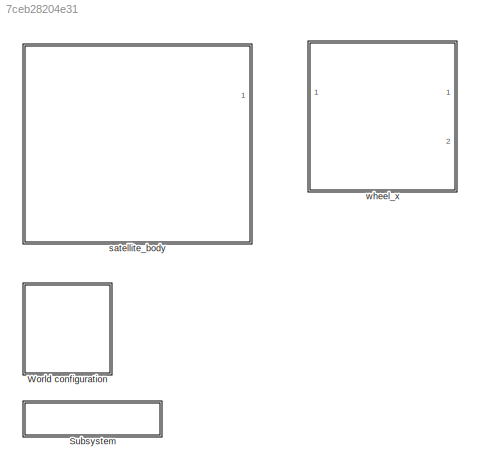
MODEL slx_7ceb28204e31
KIND library
CONFIG AbsTol = auto
CONFIG EnableMultiTasking = off
CONFIG FixedStep = auto
CONFIG MaxStep = auto
CONFIG MinStep = auto
CONFIG RelTol = 1e-3
CONFIG SampleTimeConstraint = Unconstrained
CONFIG Solver = VariableStepAuto
CONFIG SolverName = VariableStepAuto
CONFIG StartTime = 0.0
CONFIG StopTime = 10.0
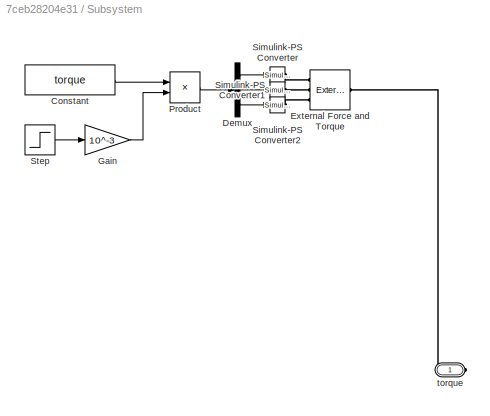
BLOCK [SubSystem] Subsystem
  Ports = [0, 0, 0, 0, 0, 0, 1]
  RequestExecContextInheritance = off
BLOCK [Constant] Subsystem/Constant
  Value = torque
BLOCK [Demux] Subsystem/Demux
  DisplayOption = bar
  Outputs = 3
  Ports = [1, 3]
BLOCK [Reference] Subsystem/External Force and Torque  REF=sm_lib/Forces and
Torques/External Force
and Torque
  Ports = [0, 0, 0, 0, 0, 3, 1]
  SourceBlock = sm_lib/Forces and\nTorques/External Force\nand Torque
  SourceProductBaseCode = MS
  SourceProductName = Simscape Multibody
  SourceType = External Force\nand Torque
BLOCK [Gain] Subsystem/Gain
  Gain = 10^-3
  OutDataTypeStr = Inherit: Inherit via internal rule
  ParamDataTypeStr = Inherit: Inherit via internal rule
  SaturateOnIntegerOverflow = off
BLOCK [Product] Subsystem/Product
  InputSameDT = off
  OutDataTypeStr = Inherit: Inherit via internal rule
  Ports = [2, 1]
  RndMeth = Floor
  SaturateOnIntegerOverflow = off
BLOCK [Reference] Subsystem/Simulink-PS Converter  REF=nesl_utility/Simulink-PS
Converter
  Ports = [1, 0, 0, 0, 0, 0, 1]
  SourceBlock = nesl_utility/Simulink-PS\nConverter
  SourceProductBaseCode = SS
  SourceProductName = Simscape
  SourceType = Simulink-PS\nConverter
BLOCK [Reference] Subsystem/Simulink-PS Converter1  REF=nesl_utility/Simulink-PS
Converter
  Ports = [1, 0, 0, 0, 0, 0, 1]
  SourceBlock = nesl_utility/Simulink-PS\nConverter
  SourceProductBaseCode = SS
  SourceProductName = Simscape
  SourceType = Simulink-PS\nConverter
BLOCK [Reference] Subsystem/Simulink-PS Converter2  REF=nesl_utility/Simulink-PS
Converter
  Ports = [1, 0, 0, 0, 0, 0, 1]
  SourceBlock = nesl_utility/Simulink-PS\nConverter
  SourceProductBaseCode = SS
  SourceProductName = Simscape
  SourceType = Simulink-PS\nConverter
BLOCK [Step] Subsystem/Step
  After = 0
  Before = 1
  SampleTime = 0.1
BLOCK [PMIOPort] Subsystem/torque
  Side = Right
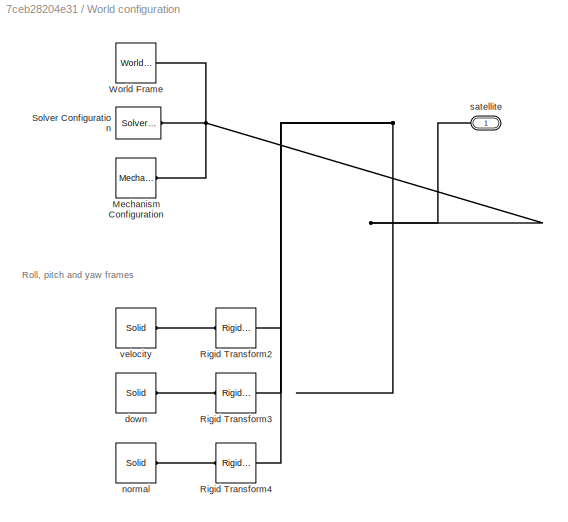
BLOCK [SubSystem] World configuration
  Ports = [0, 0, 0, 0, 0, 0, 1]
  RequestExecContextInheritance = off
BLOCK [Reference] World configuration/Mechanism Configuration  REF=sm_lib/Utilities/Mechanism
Configuration
  Ports = [0, 0, 0, 0, 0, 0, 1]
  SourceBlock = sm_lib/Utilities/Mechanism\nConfiguration
  SourceProductBaseCode = MS
  SourceProductName = Simscape Multibody
  SourceType = Mechanism\nConfiguration
BLOCK [Reference] World configuration/Rigid Transform2  REF=sm_lib/Frames and
Transforms/Rigid
Transform
  Ports = [0, 0, 0, 0, 0, 1, 1]
  SourceBlock = sm_lib/Frames and\nTransforms/Rigid\nTransform
  SourceProductBaseCode = MS
  SourceProductName = Simscape Multibody
  SourceType = Rigid\nTransform
BLOCK [Reference] World configuration/Rigid Transform3  REF=sm_lib/Frames and
Transforms/Rigid
Transform
  Ports = [0, 0, 0, 0, 0, 1, 1]
  SourceBlock = sm_lib/Frames and\nTransforms/Rigid\nTransform
  SourceProductBaseCode = MS
  SourceProductName = Simscape Multibody
  SourceType = Rigid\nTransform
BLOCK [Reference] World configuration/Rigid Transform4  REF=sm_lib/Frames and
Transforms/Rigid
Transform
  Ports = [0, 0, 0, 0, 0, 1, 1]
  SourceBlock = sm_lib/Frames and\nTransforms/Rigid\nTransform
  SourceProductBaseCode = MS
  SourceProductName = Simscape Multibody
  SourceType = Rigid\nTransform
BLOCK [Reference] World configuration/Solver Configuration  REF=nesl_utility/Solver
Configuration
  Ports = [0, 0, 0, 0, 0, 0, 1]
  SourceBlock = nesl_utility/Solver\nConfiguration
  SourceProductBaseCode = SS
  SourceProductName = Simscape
  SourceType = Solver\nConfiguration
BLOCK [Reference] World configuration/World Frame  REF=sm_lib/Frames and
Transforms/World Frame
  Ports = [0, 0, 0, 0, 0, 0, 1]
  SourceBlock = sm_lib/Frames and\nTransforms/World Frame
  SourceProductBaseCode = MS
  SourceProductName = Simscape Multibody
  SourceType = World Frame
BLOCK [Reference] World configuration/down  REF=sm_lib/Body Elements/Solid
  Ports = [0, 0, 0, 0, 0, 0, 1]
  SourceBlock = sm_lib/Body Elements/Solid
  SourceProductBaseCode = MS
  SourceProductName = Simscape Multibody
  SourceType = Solid
BLOCK [Reference] World configuration/normal  REF=sm_lib/Body Elements/Solid
  Ports = [0, 0, 0, 0, 0, 0, 1]
  SourceBlock = sm_lib/Body Elements/Solid
  SourceProductBaseCode = MS
  SourceProductName = Simscape Multibody
  SourceType = Solid
BLOCK [PMIOPort] World configuration/satellite
  Side = Right
BLOCK [Reference] World configuration/velocity  REF=sm_lib/Body Elements/Solid
  Ports = [0, 0, 0, 0, 0, 0, 1]
  SourceBlock = sm_lib/Body Elements/Solid
  SourceProductBaseCode = MS
  SourceProductName = Simscape Multibody
  SourceType = Solid
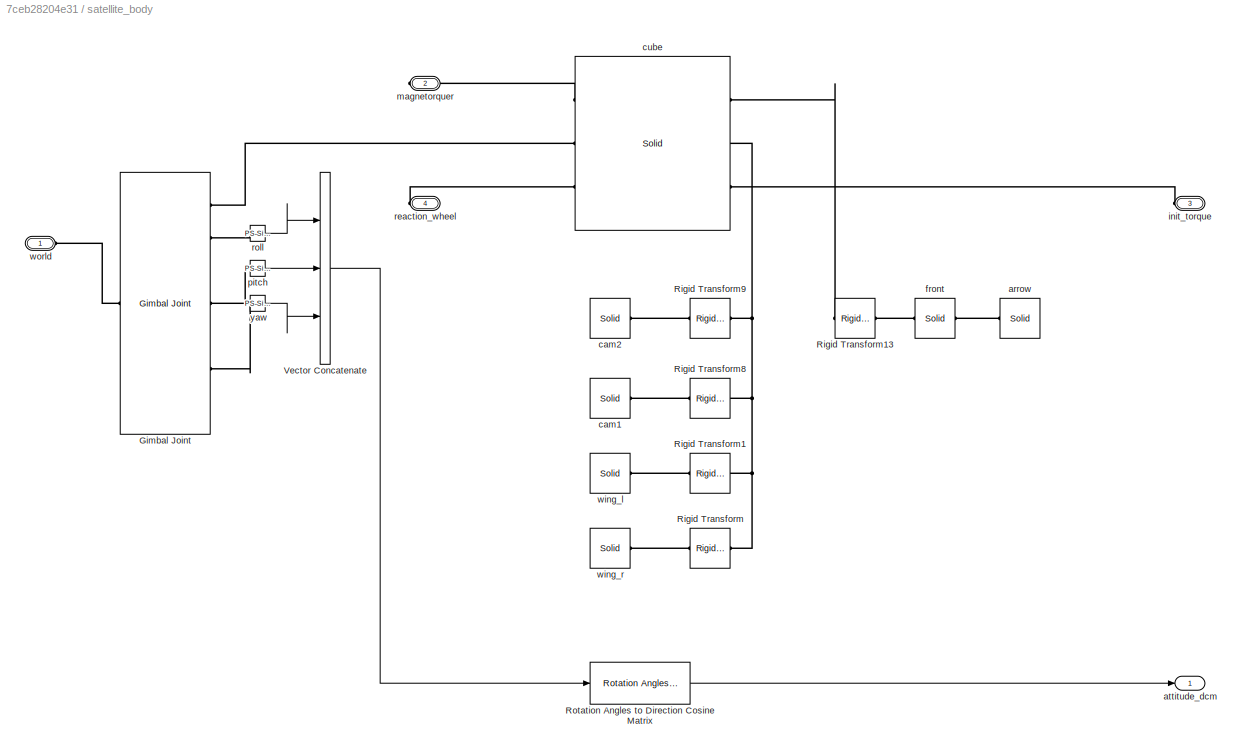
BLOCK [SubSystem] satellite_body
  Ports = [0, 1, 0, 0, 0, 2, 2]
  RequestExecContextInheritance = off
BLOCK [Reference] satellite_body/Gimbal Joint  REF=sm_lib/Joints/Gimbal Joint
  Ports = [0, 0, 0, 0, 0, 1, 7]
  SourceBlock = sm_lib/Joints/Gimbal Joint
  SourceProductBaseCode = MS
  SourceProductName = Simscape Multibody
  SourceType = Gimbal Joint
BLOCK [Reference] satellite_body/Rigid Transform  REF=sm_lib/Frames and
Transforms/Rigid
Transform
  Ports = [0, 0, 0, 0, 0, 1, 1]
  SourceBlock = sm_lib/Frames and\nTransforms/Rigid\nTransform
  SourceProductBaseCode = MS
  SourceProductName = Simscape Multibody
  SourceType = Rigid\nTransform
BLOCK [Reference] satellite_body/Rigid Transform1  REF=sm_lib/Frames and
Transforms/Rigid
Transform
  Ports = [0, 0, 0, 0, 0, 1, 1]
  SourceBlock = sm_lib/Frames and\nTransforms/Rigid\nTransform
  SourceProductBaseCode = MS
  SourceProductName = Simscape Multibody
  SourceType = Rigid\nTransform
BLOCK [Reference] satellite_body/Rigid Transform13  REF=sm_lib/Frames and
Transforms/Rigid
Transform
  Ports = [0, 0, 0, 0, 0, 1, 1]
  SourceBlock = sm_lib/Frames and\nTransforms/Rigid\nTransform
  SourceProductBaseCode = MS
  SourceProductName = Simscape Multibody
  SourceType = Rigid\nTransform
BLOCK [Reference] satellite_body/Rigid Transform8  REF=sm_lib/Frames and
Transforms/Rigid
Transform
  Ports = [0, 0, 0, 0, 0, 1, 1]
  SourceBlock = sm_lib/Frames and\nTransforms/Rigid\nTransform
  SourceProductBaseCode = MS
  SourceProductName = Simscape Multibody
  SourceType = Rigid\nTransform
BLOCK [Reference] satellite_body/Rigid Transform9  REF=sm_lib/Frames and
Transforms/Rigid
Transform
  Ports = [0, 0, 0, 0, 0, 1, 1]
  SourceBlock = sm_lib/Frames and\nTransforms/Rigid\nTransform
  SourceProductBaseCode = MS
  SourceProductName = Simscape Multibody
  SourceType = Rigid\nTransform
BLOCK [Reference] satellite_body/Rotation Angles to Direction Cosine Matrix  REF=sharedtransform/Rotation Angles to
Direction Cosine Matrix
  AttributesFormatString = Rotation Order: %<rotationOrder>
  Ports = [1, 1]
  SourceBlock = sharedtransform/Rotation Angles to\nDirection Cosine Matrix
  SourceProductBaseCode = AE
  SourceProductName = Aerospace Blockset
  SourceType = Ang2DCM
BLOCK [Concatenate] satellite_body/Vector Concatenate
  NumInputs = 3
  Ports = [3, 1]
BLOCK [Reference] satellite_body/arrow  REF=sm_lib/Body Elements/Solid
  Ports = [0, 0, 0, 0, 0, 0, 1]
  SourceBlock = sm_lib/Body Elements/Solid
  SourceProductBaseCode = MS
  SourceProductName = Simscape Multibody
  SourceType = Solid
BLOCK [Outport] satellite_body/attitude_dcm
  IconDisplay = Port number
BLOCK [Reference] satellite_body/cam1  REF=sm_lib/Body Elements/Solid
  Ports = [0, 0, 0, 0, 0, 0, 1]
  SourceBlock = sm_lib/Body Elements/Solid
  SourceProductBaseCode = MS
  SourceProductName = Simscape Multibody
  SourceType = Solid
BLOCK [Reference] satellite_body/cam2  REF=sm_lib/Body Elements/Solid
  Ports = [0, 0, 0, 0, 0, 0, 1]
  SourceBlock = sm_lib/Body Elements/Solid
  SourceProductBaseCode = MS
  SourceProductName = Simscape Multibody
  SourceType = Solid
BLOCK [Reference] satellite_body/cube  REF=sm_lib/Body Elements/Solid
  Ports = [0, 0, 0, 0, 0, 3, 3]
  SourceBlock = sm_lib/Body Elements/Solid
  SourceProductBaseCode = MS
  SourceProductName = Simscape Multibody
  SourceType = Solid
BLOCK [Reference] satellite_body/front  REF=sm_lib/Body Elements/Solid
  Ports = [0, 0, 0, 0, 0, 1, 1]
  SourceBlock = sm_lib/Body Elements/Solid
  SourceProductBaseCode = MS
  SourceProductName = Simscape Multibody
  SourceType = Solid
BLOCK [PMIOPort] satellite_body/init_torque
  Port = 3
  Side = Left
BLOCK [PMIOPort] satellite_body/magnetorquer
  Port = 2
  Side = Right
BLOCK [Reference] satellite_body/pitch  REF=nesl_utility/PS-Simulink
Converter
  Ports = [0, 1, 0, 0, 0, 1]
  SourceBlock = nesl_utility/PS-Simulink\nConverter
  SourceProductBaseCode = SS
  SourceProductName = Simscape
  SourceType = PS-Simulink\nConverter
BLOCK [PMIOPort] satellite_body/reaction_wheel
  Port = 4
  Side = Right
BLOCK [Reference] satellite_body/roll  REF=nesl_utility/PS-Simulink
Converter
  Ports = [0, 1, 0, 0, 0, 1]
  SourceBlock = nesl_utility/PS-Simulink\nConverter
  SourceProductBaseCode = SS
  SourceProductName = Simscape
  SourceType = PS-Simulink\nConverter
BLOCK [Reference] satellite_body/wing_l  REF=sm_lib/Body Elements/Solid
  Ports = [0, 0, 0, 0, 0, 0, 1]
  SourceBlock = sm_lib/Body Elements/Solid
  SourceProductBaseCode = MS
  SourceProductName = Simscape Multibody
  SourceType = Solid
BLOCK [Reference] satellite_body/wing_r  REF=sm_lib/Body Elements/Solid
  Ports = [0, 0, 0, 0, 0, 0, 1]
  SourceBlock = sm_lib/Body Elements/Solid
  SourceProductBaseCode = MS
  SourceProductName = Simscape Multibody
  SourceType = Solid
BLOCK [PMIOPort] satellite_body/world
  Side = Left
BLOCK [Reference] satellite_body/yaw  REF=nesl_utility/PS-Simulink
Converter
  Ports = [0, 1, 0, 0, 0, 1]
  SourceBlock = nesl_utility/PS-Simulink\nConverter
  SourceProductBaseCode = SS
  SourceProductName = Simscape
  SourceType = PS-Simulink\nConverter
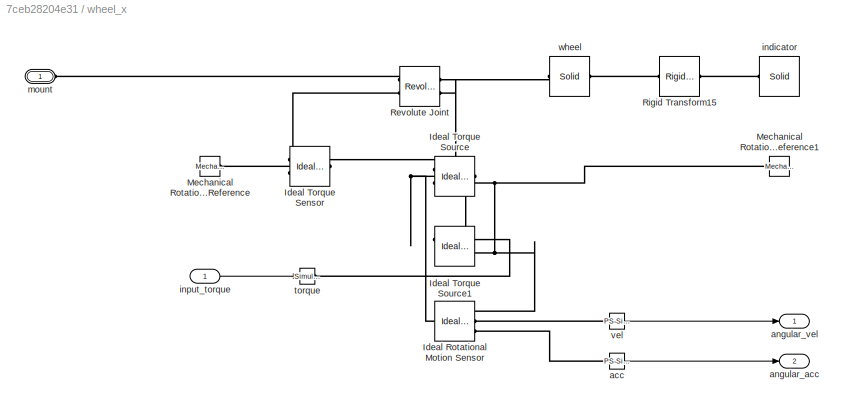
BLOCK [SubSystem] wheel_x
  Ports = [1, 2, 0, 0, 0, 1]
  RequestExecContextInheritance = off
BLOCK [Reference] wheel_x/Ideal Rotational Motion Sensor  REF=fl_lib/Mechanical/Mechanical Sensors/Ideal Rotational
Motion Sensor
  Ports = [0, 0, 0, 0, 0, 1, 3]
  SourceBlock = fl_lib/Mechanical/Mechanical Sensors/Ideal Rotational\nMotion Sensor
  SourceProductBaseCode = SS
  SourceProductName = Simscape
  SourceType = Ideal Rotational\nMotion Sensor
BLOCK [Reference] wheel_x/Ideal Torque Sensor  REF=fl_lib/Mechanical/Mechanical Sensors/Ideal Torque Sensor
  Ports = [0, 0, 0, 0, 0, 1, 2]
  SourceBlock = fl_lib/Mechanical/Mechanical Sensors/Ideal Torque Sensor
  SourceProductBaseCode = SS
  SourceProductName = Simscape
  SourceType = Ideal Torque Sensor
BLOCK [Reference] wheel_x/Ideal Torque Source  REF=fl_lib/Mechanical/Mechanical Sources/Ideal Torque Source
  Ports = [0, 0, 0, 0, 0, 1, 2]
  SourceBlock = fl_lib/Mechanical/Mechanical Sources/Ideal Torque Source
  SourceProductBaseCode = SS
  SourceProductName = Simscape
  SourceType = Ideal Torque Source
BLOCK [Reference] wheel_x/Ideal Torque Source1  REF=fl_lib/Mechanical/Mechanical Sources/Ideal Torque Source
  Ports = [0, 0, 0, 0, 0, 1, 2]
  SourceBlock = fl_lib/Mechanical/Mechanical Sources/Ideal Torque Source
  SourceProductBaseCode = SS
  SourceProductName = Simscape
  SourceType = Ideal Torque Source
BLOCK [Reference] wheel_x/Mechanical Rotational Reference  REF=fl_lib/Mechanical/Rotational Elements/Mechanical
Rotational Reference
  Ports = [0, 0, 0, 0, 0, 1]
  SourceBlock = fl_lib/Mechanical/Rotational Elements/Mechanical\nRotational Reference
  SourceProductBaseCode = SS
  SourceProductName = Simscape
  SourceType = Mechanical\nRotational Reference
BLOCK [Reference] wheel_x/Mechanical Rotational Reference1  REF=fl_lib/Mechanical/Rotational Elements/Mechanical
Rotational Reference
  Ports = [0, 0, 0, 0, 0, 1]
  SourceBlock = fl_lib/Mechanical/Rotational Elements/Mechanical\nRotational Reference
  SourceProductBaseCode = SS
  SourceProductName = Simscape
  SourceType = Mechanical\nRotational Reference
BLOCK [Reference] wheel_x/Revolute Joint  REF=sm_lib/Joints/Revolute Joint
  Ports = [0, 0, 0, 0, 0, 2, 2]
  SourceBlock = sm_lib/Joints/Revolute Joint
  SourceProductBaseCode = MS
  SourceProductName = Simscape Multibody
  SourceType = Revolute Joint
BLOCK [Reference] wheel_x/Rigid Transform15  REF=sm_lib/Frames and
Transforms/Rigid
Transform
  Ports = [0, 0, 0, 0, 0, 1, 1]
  SourceBlock = sm_lib/Frames and\nTransforms/Rigid\nTransform
  SourceProductBaseCode = MS
  SourceProductName = Simscape Multibody
  SourceType = Rigid\nTransform
BLOCK [Reference] wheel_x/acc  REF=nesl_utility/PS-Simulink
Converter
  Ports = [0, 1, 0, 0, 0, 1]
  SourceBlock = nesl_utility/PS-Simulink\nConverter
  SourceProductBaseCode = SS
  SourceProductName = Simscape
  SourceType = PS-Simulink\nConverter
BLOCK [Outport] wheel_x/angular_acc
  IconDisplay = Port number
  Port = 2
BLOCK [Outport] wheel_x/angular_vel
  IconDisplay = Port number
BLOCK [Reference] wheel_x/indicator  REF=sm_lib/Body Elements/Solid
  Ports = [0, 0, 0, 0, 0, 0, 1]
  SourceBlock = sm_lib/Body Elements/Solid
  SourceProductBaseCode = MS
  SourceProductName = Simscape Multibody
  SourceType = Solid
BLOCK [Inport] wheel_x/input_torque
  IconDisplay = Port number
BLOCK [PMIOPort] wheel_x/mount
  Side = Left
BLOCK [Reference] wheel_x/torque  REF=nesl_utility/Simulink-PS
Converter
  Ports = [1, 0, 0, 0, 0, 0, 1]
  SourceBlock = nesl_utility/Simulink-PS\nConverter
  SourceProductBaseCode = SS
  SourceProductName = Simscape
  SourceType = Simulink-PS\nConverter
BLOCK [Reference] wheel_x/vel  REF=nesl_utility/PS-Simulink
Converter
  Ports = [0, 1, 0, 0, 0, 1]
  SourceBlock = nesl_utility/PS-Simulink\nConverter
  SourceProductBaseCode = SS
  SourceProductName = Simscape
  SourceType = PS-Simulink\nConverter
BLOCK [Reference] wheel_x/wheel  REF=sm_lib/Body Elements/Solid
  Ports = [0, 0, 0, 0, 0, 1, 1]
  SourceBlock = sm_lib/Body Elements/Solid
  SourceProductBaseCode = MS
  SourceProductName = Simscape Multibody
  SourceType = Solid
ANNOTATION World configuration: Roll, pitch and yaw frames
LINE Subsystem/Constant:1 -> Subsystem/Product:1
LINE Subsystem/Demux:1 -> Subsystem/Simulink-PS Converter:1
LINE Subsystem/Demux:2 -> Subsystem/Simulink-PS Converter1:1
LINE Subsystem/Demux:3 -> Subsystem/Simulink-PS Converter2:1
LINE Subsystem/Gain:1 -> Subsystem/Product:2
LINE Subsystem/Product:1 -> Subsystem/Demux:1
LINE Subsystem/Step:1 -> Subsystem/Gain:1
LINE satellite_body/Rotation Angles to Direction Cosine Matrix:1 -> satellite_body/attitude_dcm:1
LINE satellite_body/Vector Concatenate:1 -> satellite_body/Rotation Angles to Direction Cosine Matrix:1
LINE satellite_body/pitch:1 -> satellite_body/Vector Concatenate:2
LINE satellite_body/roll:1 -> satellite_body/Vector Concatenate:1
LINE satellite_body/yaw:1 -> satellite_body/Vector Concatenate:3
LINE wheel_x/acc:1 -> wheel_x/angular_acc:1
LINE wheel_x/input_torque:1 -> wheel_x/torque:1
LINE wheel_x/vel:1 -> wheel_x/angular_vel:1
PLINE Subsystem/External Force and Torque:LConn1 -- Subsystem/Simulink-PS Converter:RConn1
PLINE Subsystem/External Force and Torque:LConn2 -- Subsystem/Simulink-PS Converter1:RConn1
PLINE Subsystem/External Force and Torque:LConn3 -- Subsystem/Simulink-PS Converter2:RConn1
PLINE Subsystem/External Force and Torque:RConn1 -- Subsystem/torque:RConn1
PNET net1: World configuration/Mechanism Configuration:RConn1 -- World configuration/Rigid Transform2:RConn1 -- World configuration/Rigid Transform3:RConn1 -- World configuration/Rigid Transform4:RConn1 -- World configuration/Solver Configuration:RConn1 -- World configuration/World Frame:RConn1 -- World configuration/satellite:RConn1
PLINE World configuration/Rigid Transform2:LConn1 -- World configuration/velocity:RConn1
PLINE World configuration/Rigid Transform3:LConn1 -- World configuration/down:RConn1
PLINE World configuration/Rigid Transform4:LConn1 -- World configuration/normal:RConn1
PLINE satellite_body/Gimbal Joint:LConn1 -- satellite_body/world:RConn1
PLINE satellite_body/Gimbal Joint:RConn1 -- satellite_body/cube:RConn2
PLINE satellite_body/Gimbal Joint:RConn2 -- satellite_body/roll:LConn1
PLINE satellite_body/Gimbal Joint:RConn4 -- satellite_body/pitch:LConn1
PLINE satellite_body/Gimbal Joint:RConn6 -- satellite_body/yaw:LConn1
PLINE satellite_body/Rigid Transform13:LConn1 -- satellite_body/cube:LConn1
PLINE satellite_body/Rigid Transform13:RConn1 -- satellite_body/front:RConn1
PNET net2: satellite_body/Rigid Transform1:LConn1 -- satellite_body/Rigid Transform8:LConn1 -- satellite_body/Rigid Transform9:LConn1 -- satellite_body/Rigid Transform:LConn1 -- satellite_body/cube:LConn2
PLINE satellite_body/Rigid Transform1:RConn1 -- satellite_body/wing_l:RConn1
PLINE satellite_body/Rigid Transform8:RConn1 -- satellite_body/cam1:RConn1
PLINE satellite_body/Rigid Transform9:RConn1 -- satellite_body/cam2:RConn1
PLINE satellite_body/Rigid Transform:RConn1 -- satellite_body/wing_r:RConn1
PLINE satellite_body/arrow:RConn1 -- satellite_body/front:LConn1
PLINE satellite_body/cube:LConn3 -- satellite_body/init_torque:RConn1
PLINE satellite_body/cube:RConn1 -- satellite_body/magnetorquer:RConn1
PLINE satellite_body/cube:RConn3 -- satellite_body/reaction_wheel:RConn1
PNET net3: wheel_x/Ideal Rotational Motion Sensor:LConn1 -- wheel_x/Ideal Torque Sensor:RConn1 -- wheel_x/Ideal Torque Source1:LConn1 -- wheel_x/Ideal Torque Source:LConn1
PNET net4: wheel_x/Ideal Rotational Motion Sensor:RConn1 -- wheel_x/Ideal Torque Source1:RConn2 -- wheel_x/Ideal Torque Source:RConn2 -- wheel_x/Mechanical Rotational Reference1:LConn1
PLINE wheel_x/Ideal Rotational Motion Sensor:RConn2 -- wheel_x/vel:LConn1
PLINE wheel_x/Ideal Rotational Motion Sensor:RConn3 -- wheel_x/acc:LConn1
PLINE wheel_x/Ideal Torque Sensor:LConn1 -- wheel_x/Mechanical Rotational Reference:LConn1
PLINE wheel_x/Ideal Torque Sensor:RConn2 -- wheel_x/Revolute Joint:LConn2
PLINE wheel_x/Ideal Torque Source1:RConn1 -- wheel_x/torque:RConn1
PLINE wheel_x/Ideal Torque Source:RConn1 -- wheel_x/Revolute Joint:RConn2
PLINE wheel_x/Revolute Joint:LConn1 -- wheel_x/mount:RConn1
PLINE wheel_x/Revolute Joint:RConn1 -- wheel_x/wheel:RConn1
PLINE wheel_x/Rigid Transform15:LConn1 -- wheel_x/wheel:LConn1
PLINE wheel_x/Rigid Transform15:RConn1 -- wheel_x/indicator:RConn1
note: PNET lines group multi-terminal physical nets as a canonical sorted terminal list (undirected conserving connections); 2-terminal nets keep the pairwise PLINE form
